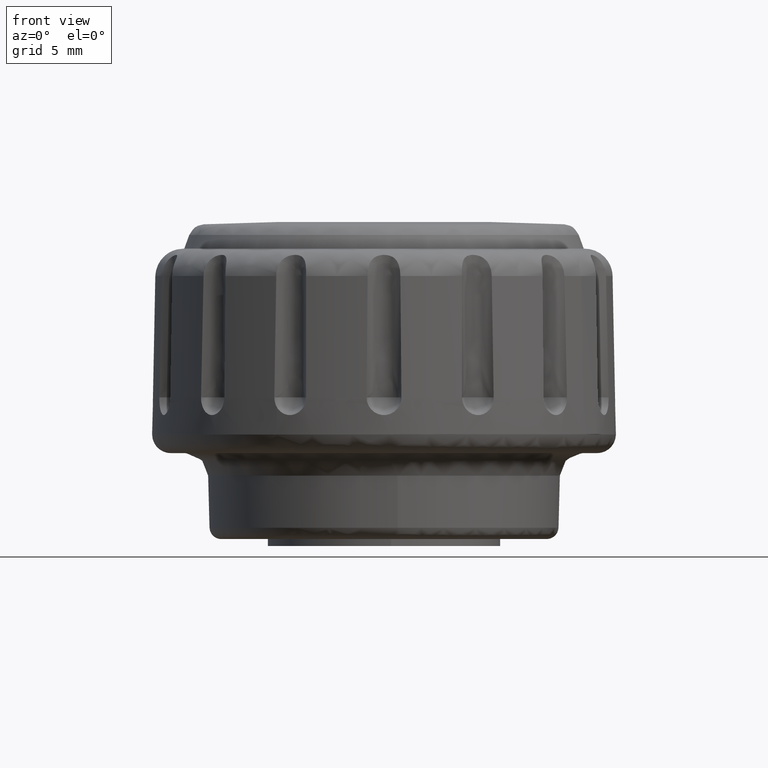
[diagram: clean part render]
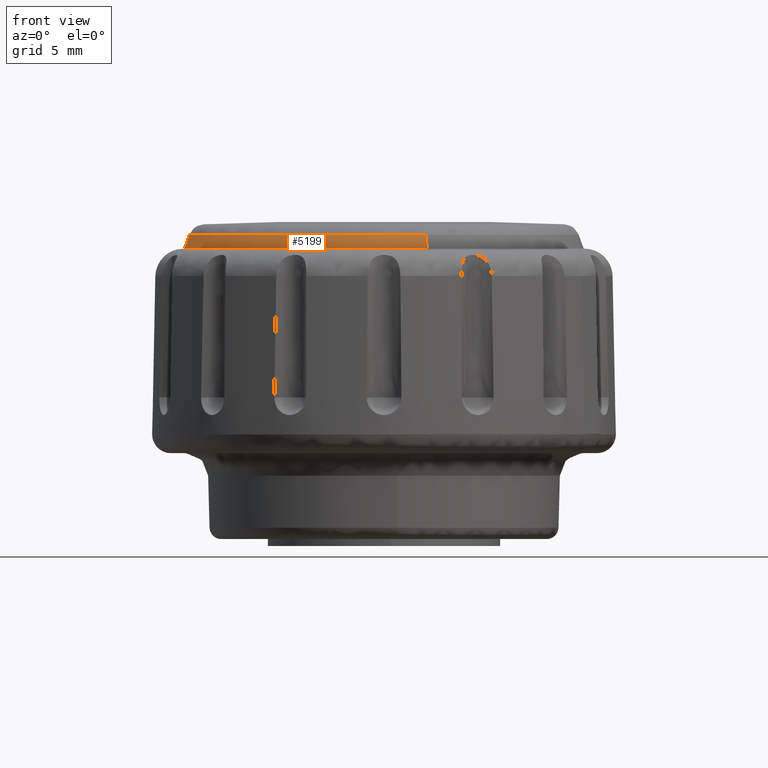
[diagram: same view with one face highlighted and labeled with its STEP entity id]
A machine part, front view. The second image highlights one B-rep face of the part: STEP entity #5199.
In plain terms, the highlighted face is a freeform B-spline surface patch.
Its self-contained STEP definition (entity closure, byte-faithful):
#1596=CARTESIAN_POINT('',(-7.975012947789745,-2.591238784452618,13.389539658029310));
#1597=VERTEX_POINT('',#1596);
#1598=CARTESIAN_POINT('',(-8.385424852422496,0.0,13.389539658003200));
#1599=VERTEX_POINT('',#1598);
#1600=CARTESIAN_POINT('',(-7.975012947789745,-2.591238784452618,13.389539658029305));
#1601=CARTESIAN_POINT('',(-8.385424852417980,-1.328120822134526,13.389539658016258));
#1602=CARTESIAN_POINT('',(-8.385424852422496,0.0,13.389539658003200));
#1610=(BOUNDED_CURVE()B_SPLINE_CURVE(2,(#1600,#1601,#1602),.UNSPECIFIED.,.F.,.U.)B_SPLINE_CURVE_WITH_KNOTS((3,3),(0.947450174526056,1.0),.UNSPECIFIED.)CURVE()GEOMETRIC_REPRESENTATION_ITEM()RATIONAL_B_SPLINE_CURVE((0.902750339224290,0.938434049875405,1.0))REPRESENTATION_ITEM(''));
#1611=EDGE_CURVE('',#1597,#1599,#1610,.T.);
#1643=CARTESIAN_POINT('',(-1.814938117771038,8.186656801421265,13.389539658013600));
#1644=VERTEX_POINT('',#1643);
#1660=CARTESIAN_POINT('',(-8.385424852422496,0.0,13.389539658003200));
#1661=CARTESIAN_POINT('',(-8.385424852422926,6.730014961382262,13.389539658003930));
#1662=CARTESIAN_POINT('',(-1.814938117771038,8.186656801421265,13.389539658013591));
#1670=(BOUNDED_CURVE()B_SPLINE_CURVE(2,(#1660,#1661,#1662),.UNSPECIFIED.,.F.,.U.)B_SPLINE_CURVE_WITH_KNOTS((3,3),(0.0,0.212959885329464),.UNSPECIFIED.)CURVE()GEOMETRIC_REPRESENTATION_ITEM()RATIONAL_B_SPLINE_CURVE((1.0,0.750501974830839,0.926068516301295))REPRESENTATION_ITEM(''));
#1671=EDGE_CURVE('',#1599,#1644,#1670,.T.);
#1705=CARTESIAN_POINT('',(1.814938117771037,-8.186656801421265,13.389539658013600));
#1706=VERTEX_POINT('',#1705);
#1707=CARTESIAN_POINT('',(1.814938117771037,-8.186656801421265,13.389539658013598));
#1708=CARTESIAN_POINT('',(0.918353379876975,-8.385424852419734,13.389539658015149));
#1709=CARTESIAN_POINT('',(4.985431E-012,-8.385424852419664,13.389539658016711));
#1710=CARTESIAN_POINT('',(-6.092367770667238,-8.385424852419213,13.389539658027056));
#1711=CARTESIAN_POINT('',(-7.975012947789745,-2.591238784452618,13.389539658029305));
#1719=(BOUNDED_CURVE()B_SPLINE_CURVE(2,(#1707,#1708,#1709,#1710,#1711),.UNSPECIFIED.,.F.,.U.)B_SPLINE_CURVE_WITH_KNOTS((3,2,3),(0.712959885329464,0.750000000000000,0.947450174526056),.UNSPECIFIED.)CURVE()GEOMETRIC_REPRESENTATION_ITEM()RATIONAL_B_SPLINE_CURVE((0.926068516301296,0.956604806355709,1.0,0.768672731311143,0.902750339224290))REPRESENTATION_ITEM(''));
#1720=EDGE_CURVE('',#1706,#1597,#1719,.T.);
#5097=CARTESIAN_POINT('',(1.861380862307044,-8.396146484138654,12.800000684198480));
#5098=VERTEX_POINT('',#5097);
#5099=CARTESIAN_POINT('',(1.814938117771037,-8.186656801421265,13.389539658013600));
#5100=CARTESIAN_POINT('',(1.861380862307044,-8.396146484138654,12.800000684198480));
#5101=QUASI_UNIFORM_CURVE('',1,(#5099,#5100),.UNSPECIFIED.,.F.,.U.);
#5102=EDGE_CURVE('',#1706,#5098,#5101,.T.);
#5119=CARTESIAN_POINT('',(-1.861380862307045,8.396146484138654,12.800000684198480));
#5120=VERTEX_POINT('',#5119);
#5136=CARTESIAN_POINT('',(-1.814938117771038,8.186656801421265,13.389539658013600));
#5137=CARTESIAN_POINT('',(-1.861380862307045,8.396146484138654,12.800000684198480));
#5138=QUASI_UNIFORM_CURVE('',1,(#5136,#5137),.UNSPECIFIED.,.F.,.U.);
#5139=EDGE_CURVE('',#1644,#5120,#5138,.T.);
#5144=CARTESIAN_POINT('',(1.813777049149774,-8.181419559346960,13.404278132375049));
#5145=CARTESIAN_POINT('',(-6.367642510197186,-9.995196608496734,13.404278132375051));
#5146=CARTESIAN_POINT('',(-8.181419559346960,-1.813777049149774,13.404278132375049));
#5147=CARTESIAN_POINT('',(-9.995196608496734,6.367642510197186,13.404278132375051));
#5148=CARTESIAN_POINT('',(-1.813777049149774,8.181419559346960,13.404278132375049));
#5149=CARTESIAN_POINT('',(1.862570957630797,-8.401514657259220,12.784893747995071));
#5150=CARTESIAN_POINT('',(-6.538943699628423,-10.264085614890018,12.784893747995069));
#5151=CARTESIAN_POINT('',(-8.401514657259220,-1.862570957630797,12.784893747995071));
#5152=CARTESIAN_POINT('',(-10.264085614890018,6.538943699628423,12.784893747995069));
#5153=CARTESIAN_POINT('',(-1.862570957630797,8.401514657259220,12.784893747995071));
#5161=(BOUNDED_SURFACE()B_SPLINE_SURFACE(2,1,((#5144,#5149),(#5145,#5150),(#5146,#5151),(#5147,#5152),(#5148,#5153)),.UNSPECIFIED.,.F.,.F.,.U.)B_SPLINE_SURFACE_WITH_KNOTS((3,2,3),(2,2),(0.0,14.258058171431649,28.516116342863299),(0.0,1.0),.UNSPECIFIED.)GEOMETRIC_REPRESENTATION_ITEM()RATIONAL_B_SPLINE_SURFACE(((1.0,1.0),(0.707106781186548,0.707106781186548),(1.0,1.0),(0.707106781186548,0.707106781186548),(1.0,1.0)))REPRESENTATION_ITEM('')SURFACE());
#5162=ORIENTED_EDGE('',*,*,#1671,.T.);
#5163=ORIENTED_EDGE('',*,*,#5139,.T.);
#5164=CARTESIAN_POINT('',(-8.600000842887791,0.0,12.800000684199460));
#5165=VERTEX_POINT('',#5164);
#5166=CARTESIAN_POINT('',(-8.600000842887791,0.0,12.800000684199460));
#5167=CARTESIAN_POINT('',(-8.600000842887830,6.902230400860454,12.800000684198972));
#5168=CARTESIAN_POINT('',(-1.861380862307045,8.396146484138654,12.800000684198480));
#5176=(BOUNDED_CURVE()B_SPLINE_CURVE(2,(#5166,#5167,#5168),.UNSPECIFIED.,.F.,.U.)B_SPLINE_CURVE_WITH_KNOTS((3,3),(0.0,0.212959885329402),.UNSPECIFIED.)CURVE()GEOMETRIC_REPRESENTATION_ITEM()RATIONAL_B_SPLINE_CURVE((1.0,0.750501974830910,0.926068516301194))REPRESENTATION_ITEM(''));
#5177=EDGE_CURVE('',#5165,#5120,#5176,.T.);
#5178=ORIENTED_EDGE('',*,*,#5177,.F.);
#5179=CARTESIAN_POINT('',(1.861380862307044,-8.396146484138654,12.800000684198489));
#5180=CARTESIAN_POINT('',(0.941853272789755,-8.600000842888120,12.800000684198530));
#5181=CARTESIAN_POINT('',(7.024462E-014,-8.600000842888104,12.800000684198579));
#5182=CARTESIAN_POINT('',(-8.600000842887759,-8.600000842887932,12.800000684199068));
#5183=CARTESIAN_POINT('',(-8.600000842887791,0.0,12.800000684199460));
#5191=(BOUNDED_CURVE()B_SPLINE_CURVE(2,(#5179,#5180,#5181,#5182,#5183),.UNSPECIFIED.,.F.,.U.)B_SPLINE_CURVE_WITH_KNOTS((3,2,3),(0.712959885329403,0.750000000000000,1.0),.UNSPECIFIED.)CURVE()GEOMETRIC_REPRESENTATION_ITEM()RATIONAL_B_SPLINE_CURVE((0.926068516301195,0.956604806355637,1.0,0.707106781186547,1.0))REPRESENTATION_ITEM(''));
#5192=EDGE_CURVE('',#5098,#5165,#5191,.T.);
#5193=ORIENTED_EDGE('',*,*,#5192,.F.);
#5194=ORIENTED_EDGE('',*,*,#5102,.F.);
#5195=ORIENTED_EDGE('',*,*,#1720,.T.);
#5196=ORIENTED_EDGE('',*,*,#1611,.T.);
#5197=EDGE_LOOP('',(#5162,#5163,#5178,#5193,#5194,#5195,#5196));
#5198=FACE_OUTER_BOUND('',#5197,.T.);
#5199=ADVANCED_FACE('',(#5198),#5161,.T.);